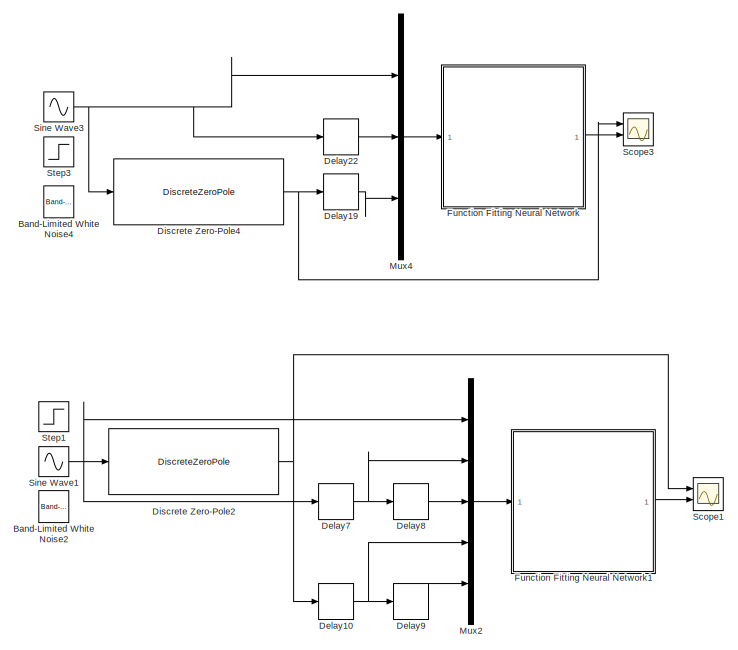
[diagram: root canvas - part 1/2, left side, full height]
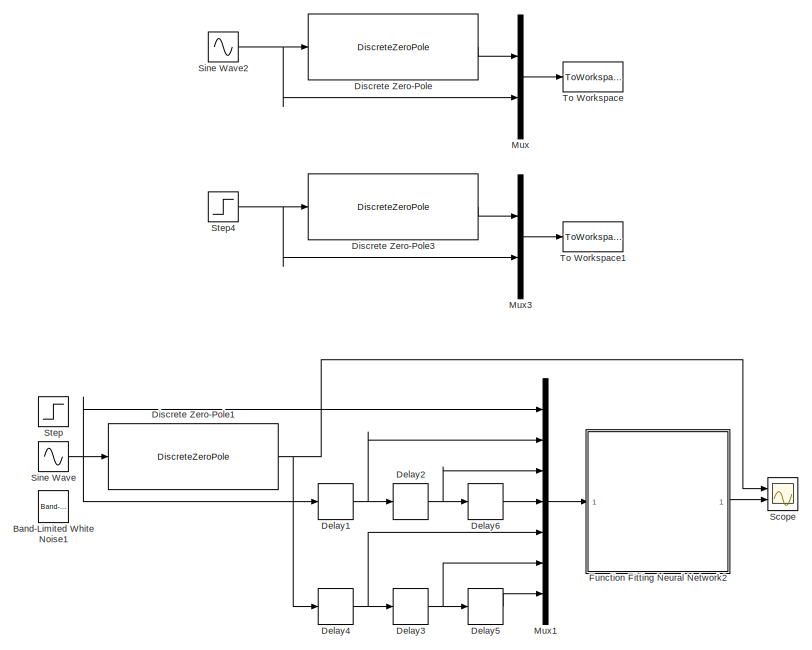
[diagram: root canvas - part 2/2, right side, full height]
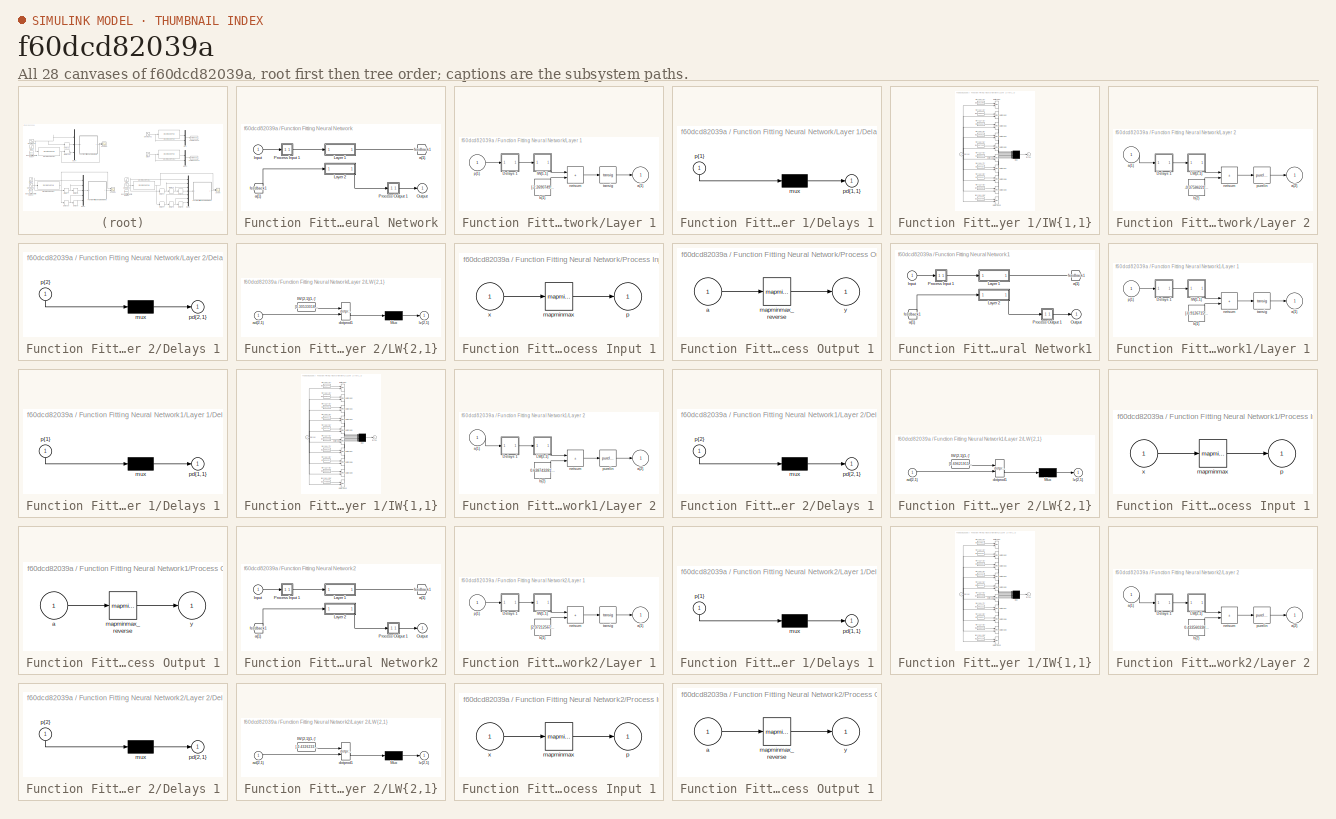
[diagram: thumbnail index - all 28 canvases of the model, root first then tree order]
MODEL slx_f60dcd82039a
KIND model
CONFIG AbsTol = auto
CONFIG EnableMultiTasking = on
CONFIG FixedStep = 0.05
CONFIG MaxStep = auto
CONFIG MinStep = auto
CONFIG RelTol = 1e-3
CONFIG SampleTimeConstraint = Unconstrained
CONFIG SolverName = FixedStepDiscrete
CONFIG StartTime = 0.0
CONFIG StopTime = 10
BLOCK [Reference] Band-Limited White Noise1  REF=simulink/Sources/Band-Limited
White Noise
  Ports = [0, 1]
  SourceBlock = simulink/Sources/Band-Limited\nWhite Noise
  SourceProductBaseCode = SL
  SourceType = Band-Limited White Noise.
BLOCK [Reference] Band-Limited White Noise2  REF=simulink/Sources/Band-Limited
White Noise
  Ports = [0, 1]
  SourceBlock = simulink/Sources/Band-Limited\nWhite Noise
  SourceProductBaseCode = SL
  SourceType = Band-Limited White Noise.
BLOCK [Reference] Band-Limited White Noise4  REF=simulink/Sources/Band-Limited
White Noise
  Ports = [0, 1]
  SourceBlock = simulink/Sources/Band-Limited\nWhite Noise
  SourceProductBaseCode = SL
  SourceType = Band-Limited White Noise.
BLOCK [Delay] Delay1
  DelayLength = 1
  InitialCondition = 0
  InputPortMap = u0
  Ports = [1, 1]
BLOCK [Delay] Delay10
  DelayLength = 1
  InitialCondition = 0
  InputPortMap = u0
  Ports = [1, 1]
BLOCK [Delay] Delay19
  DelayLength = 1
  InitialCondition = 0
  InputPortMap = u0
  Ports = [1, 1]
BLOCK [Delay] Delay2
  DelayLength = 1
  InitialCondition = 0
  InputPortMap = u0
  Ports = [1, 1]
BLOCK [Delay] Delay22
  DelayLength = 1
  InitialCondition = 0
  InputPortMap = u0
  Ports = [1, 1]
BLOCK [Delay] Delay3
  DelayLength = 1
  InitialCondition = 0
  InputPortMap = u0
  Ports = [1, 1]
BLOCK [Delay] Delay4
  DelayLength = 1
  InitialCondition = 0
  InputPortMap = u0
  Ports = [1, 1]
BLOCK [Delay] Delay5
  DelayLength = 1
  InitialCondition = 0
  InputPortMap = u0
  Ports = [1, 1]
BLOCK [Delay] Delay6
  DelayLength = 1
  InitialCondition = 0
  InputPortMap = u0
  Ports = [1, 1]
BLOCK [Delay] Delay7
  DelayLength = 1
  InitialCondition = 0
  InputPortMap = u0
  Ports = [1, 1]
BLOCK [Delay] Delay8
  DelayLength = 1
  InitialCondition = 0
  InputPortMap = u0
  Ports = [1, 1]
BLOCK [Delay] Delay9
  DelayLength = 1
  InitialCondition = 0
  InputPortMap = u0
  Ports = [1, 1]
BLOCK [DiscreteZeroPole] Discrete Zero-Pole
  Gain = 1
  Poles = [0.1 0.5 0.94]
  SampleTime = -1
  Zeros = [0.8]
BLOCK [DiscreteZeroPole] Discrete Zero-Pole1
  Gain = 1
  Poles = [0.1 0.5 0.94]
  SampleTime = -1
  Zeros = [0.8]
BLOCK [DiscreteZeroPole] Discrete Zero-Pole2
  Gain = 1
  Poles = [0.1 0.5 0.94]
  SampleTime = -1
  Zeros = [0.8]
BLOCK [DiscreteZeroPole] Discrete Zero-Pole3
  Gain = 1
  Poles = [0.1 0.5 0.94]
  SampleTime = -1
  Zeros = [0.8]
BLOCK [DiscreteZeroPole] Discrete Zero-Pole4
  Gain = 1
  Poles = [0.1 0.5 0.94]
  SampleTime = -1
  Zeros = [0.8]
BLOCK [SubSystem] Function Fitting Neural Network
  Ports = [1, 1]
  RequestExecContextInheritance = off
BLOCK [From] Function Fitting Neural Network/ a{1} 
  GotoTag = feedback1
BLOCK [Inport] Function Fitting Neural Network/Input
  PortDimensions = 3
BLOCK [SubSystem] Function Fitting Neural Network/Layer 1
  Ports = [1, 1]
  RequestExecContextInheritance = off
BLOCK [SubSystem] Function Fitting Neural Network/Layer 1/Delays 1
  Ports = [1, 1]
  RequestExecContextInheritance = off
BLOCK [Mux] Function Fitting Neural Network/Layer 1/Delays 1/mux
  Inputs = 1
  Ports = [1, 1]
BLOCK [Outport] Function Fitting Neural Network/Layer 1/Delays 1/pd{1,1}
BLOCK [Inport] Function Fitting Neural Network/Layer 1/Delays 1/p{1}
  NameLocation = left
  PortDimensions = 3
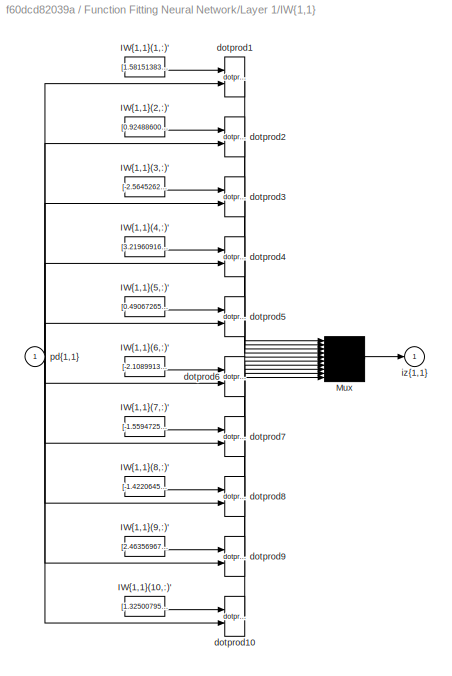
BLOCK [SubSystem] Function Fitting Neural Network/Layer 1/IW{1,1}
  Ports = [1, 1]
  RequestExecContextInheritance = off
BLOCK [Constant] Function Fitting Neural Network/Layer 1/IW{1,1}/IW{1,1}(1,:)'
  Value = [1.5815138363457652559418420423753559589385986328125;-1.6872163459666131846148573458776809275150299072265625;2.5832151850000268922258328530006110668182373046875]
BLOCK [Constant] Function Fitting Neural Network/Layer 1/IW{1,1}/IW{1,1}(10,:)'
  Value = [1.3250079569843506988036097027361392974853515625;1.3352627547983464406655684797442518174648284912109375;-1.6218067655676116078922177621279843151569366455078125]
BLOCK [Constant] Function Fitting Neural Network/Layer 1/IW{1,1}/IW{1,1}(2,:)'
  Value = [0.92488600284993960354285036373767070472240447998046875;1.621850220515159701761831456678919494152069091796875;-4.2786600382089741145819061785005033016204833984375]
BLOCK [Constant] Function Fitting Neural Network/Layer 1/IW{1,1}/IW{1,1}(3,:)'
  Value = [-2.564526298616160548959896914311684668064117431640625;0.93446161367931390717700423920177854597568511962890625;3.26348015681042369351416709832847118377685546875]
BLOCK [Constant] Function Fitting Neural Network/Layer 1/IW{1,1}/IW{1,1}(4,:)'
  Value = [3.219609160543231762829918807256035506725311279296875;0.38752466866904911046987081135739572346210479736328125;0.016739008500639050713854061314123100601136684417724609375]
BLOCK [Constant] Function Fitting Neural Network/Layer 1/IW{1,1}/IW{1,1}(5,:)'
  Value = [0.49067265178137897674304213069262914359569549560546875;1.8414534131022808338684626505710184574127197265625;1.352374664952284977204044480458833277225494384765625]
BLOCK [Constant] Function Fitting Neural Network/Layer 1/IW{1,1}/IW{1,1}(6,:)'
  Value = [-2.108991365255438399373133506742306053638458251953125;-2.38093635967131245223527002963237464427947998046875;1.358963679401484103692610005964525043964385986328125]
BLOCK [Constant] Function Fitting Neural Network/Layer 1/IW{1,1}/IW{1,1}(7,:)'
  Value = [-1.55947252588796470007537209312431514263153076171875;2.18558499331294964207472730777226388454437255859375;1.021130345471471745355529492371715605258941650390625]
BLOCK [Constant] Function Fitting Neural Network/Layer 1/IW{1,1}/IW{1,1}(8,:)'
  Value = [-1.4220645724545699639662643676274456083774566650390625;1.97793466762390579560815240256488323211669921875;1.86705021412507843336925361654721200466156005859375]
BLOCK [Constant] Function Fitting Neural Network/Layer 1/IW{1,1}/IW{1,1}(9,:)'
  Value = [2.463569677990985251625488672289066016674041748046875;-1.9470642043861994263664882964803837239742279052734375;1.819824469754362183948614983819425106048583984375]
BLOCK [Mux] Function Fitting Neural Network/Layer 1/IW{1,1}/Mux
  Inputs = 10
  Ports = [10, 1]
BLOCK [Reference] Function Fitting Neural Network/Layer 1/IW{1,1}/dotprod1  REF=neural/Weight Functions/dotprod
  Ports = [2, 1]
  SourceBlock = neural/Weight Functions/dotprod
  SourceProductBaseCode = NN
  SourceType = DOTPROD
BLOCK [Reference] Function Fitting Neural Network/Layer 1/IW{1,1}/dotprod10  REF=neural/Weight Functions/dotprod
  Ports = [2, 1]
  SourceBlock = neural/Weight Functions/dotprod
  SourceProductBaseCode = NN
  SourceType = DOTPROD
BLOCK [Reference] Function Fitting Neural Network/Layer 1/IW{1,1}/dotprod2  REF=neural/Weight Functions/dotprod
  Ports = [2, 1]
  SourceBlock = neural/Weight Functions/dotprod
  SourceProductBaseCode = NN
  SourceType = DOTPROD
BLOCK [Reference] Function Fitting Neural Network/Layer 1/IW{1,1}/dotprod3  REF=neural/Weight Functions/dotprod
  Ports = [2, 1]
  SourceBlock = neural/Weight Functions/dotprod
  SourceProductBaseCode = NN
  SourceType = DOTPROD
BLOCK [Reference] Function Fitting Neural Network/Layer 1/IW{1,1}/dotprod4  REF=neural/Weight Functions/dotprod
  Ports = [2, 1]
  SourceBlock = neural/Weight Functions/dotprod
  SourceProductBaseCode = NN
  SourceType = DOTPROD
BLOCK [Reference] Function Fitting Neural Network/Layer 1/IW{1,1}/dotprod5  REF=neural/Weight Functions/dotprod
  Ports = [2, 1]
  SourceBlock = neural/Weight Functions/dotprod
  SourceProductBaseCode = NN
  SourceType = DOTPROD
BLOCK [Reference] Function Fitting Neural Network/Layer 1/IW{1,1}/dotprod6  REF=neural/Weight Functions/dotprod
  Ports = [2, 1]
  SourceBlock = neural/Weight Functions/dotprod
  SourceProductBaseCode = NN
  SourceType = DOTPROD
BLOCK [Reference] Function Fitting Neural Network/Layer 1/IW{1,1}/dotprod7  REF=neural/Weight Functions/dotprod
  Ports = [2, 1]
  SourceBlock = neural/Weight Functions/dotprod
  SourceProductBaseCode = NN
  SourceType = DOTPROD
BLOCK [Reference] Function Fitting Neural Network/Layer 1/IW{1,1}/dotprod8  REF=neural/Weight Functions/dotprod
  Ports = [2, 1]
  SourceBlock = neural/Weight Functions/dotprod
  SourceProductBaseCode = NN
  SourceType = DOTPROD
BLOCK [Reference] Function Fitting Neural Network/Layer 1/IW{1,1}/dotprod9  REF=neural/Weight Functions/dotprod
  Ports = [2, 1]
  SourceBlock = neural/Weight Functions/dotprod
  SourceProductBaseCode = NN
  SourceType = DOTPROD
BLOCK [Outport] Function Fitting Neural Network/Layer 1/IW{1,1}/iz{1,1}
BLOCK [Inport] Function Fitting Neural Network/Layer 1/IW{1,1}/pd{1,1}
  PortDimensions = 3
BLOCK [Outport] Function Fitting Neural Network/Layer 1/a{1}
  InitialOutput = [0;0;0;0;0;0;0;0;0;0]
BLOCK [Constant] Function Fitting Neural Network/Layer 1/b{1}
  Value = [-2.269074953755759072038244994473643600940704345703125;-0.687183894571456566069400651031173765659332275390625;3.196728181762282350319992474396713078022003173828125;-0.050095383484116962069521150624495930969715118408203125;-1.0508039863170577365991675833356566727161407470703125;-1.0826391554405525585735858840052969753742218017578125;-0.2153026904287328735509987609475501812994480133056640625;1.9587...<+154ch>
BLOCK [Sum] Function Fitting Neural Network/Layer 1/netsum
  IconShape = rectangular
  InputSameDT = on
  Inputs = 2
  OutDataTypeStr = Inherit: Same as first input
  Ports = [2, 1]
  SaturateOnIntegerOverflow = on
BLOCK [Inport] Function Fitting Neural Network/Layer 1/p{1}
  PortDimensions = 3
BLOCK [Reference] Function Fitting Neural Network/Layer 1/tansig  REF=neural/Transfer Functions/tansig
  Ports = [1, 1]
  SourceBlock = neural/Transfer Functions/tansig
  SourceProductBaseCode = NN
  SourceType = TANSIG
BLOCK [SubSystem] Function Fitting Neural Network/Layer 2
  Ports = [1, 1]
  RequestExecContextInheritance = off
BLOCK [SubSystem] Function Fitting Neural Network/Layer 2/Delays 1
  Ports = [1, 1]
  RequestExecContextInheritance = off
BLOCK [Mux] Function Fitting Neural Network/Layer 2/Delays 1/mux
  Inputs = 1
  Ports = [1, 1]
BLOCK [Outport] Function Fitting Neural Network/Layer 2/Delays 1/pd{2,1}
BLOCK [Inport] Function Fitting Neural Network/Layer 2/Delays 1/p{2}
  NameLocation = left
  PortDimensions = 10
BLOCK [SubSystem] Function Fitting Neural Network/Layer 2/LW{2,1}
  Ports = [1, 1]
  RequestExecContextInheritance = off
BLOCK [Constant] Function Fitting Neural Network/Layer 2/LW{2,1}/IW{2,1}(1,:)'
  Value = [0.305330180192903422042860483998083509504795074462890625;-0.09090246399681344013909978230003616772592067718505859375;0.84495104086413963528912063338793814182281494140625;0.050595648200195686428060071193613111972808837890625;-0.05320384689142505785230952142228488810360431671142578125;0.0596726179009054724655669588173623196780681610107421875;0.57338054085596390496704088945989497005939483642578125;-...<+159ch>
BLOCK [Mux] Function Fitting Neural Network/Layer 2/LW{2,1}/Mux
  Inputs = 1
  Ports = [1, 1]
BLOCK [Inport] Function Fitting Neural Network/Layer 2/LW{2,1}/ad{2,1}
  PortDimensions = 10
BLOCK [Reference] Function Fitting Neural Network/Layer 2/LW{2,1}/dotprod1  REF=neural/Weight Functions/dotprod
  Ports = [2, 1]
  SourceBlock = neural/Weight Functions/dotprod
  SourceProductBaseCode = NN
  SourceType = DOTPROD
BLOCK [Outport] Function Fitting Neural Network/Layer 2/LW{2,1}/lz{2,1}
BLOCK [Inport] Function Fitting Neural Network/Layer 2/a{1} 
  PortDimensions = 10
BLOCK [Outport] Function Fitting Neural Network/Layer 2/a{2}
  InitialOutput = 0
BLOCK [Constant] Function Fitting Neural Network/Layer 2/b{2}
  Value = -0.375862219961594801187487746574333868920803070068359375
BLOCK [Sum] Function Fitting Neural Network/Layer 2/netsum
  IconShape = rectangular
  InputSameDT = on
  Inputs = 2
  OutDataTypeStr = Inherit: Same as first input
  Ports = [2, 1]
  SaturateOnIntegerOverflow = on
BLOCK [Reference] Function Fitting Neural Network/Layer 2/purelin  REF=neural/Transfer Functions/purelin
  Ports = [1, 1]
  SourceBlock = neural/Transfer Functions/purelin
  SourceProductBaseCode = NN
  SourceType = PURELIN
BLOCK [Outport] Function Fitting Neural Network/Output
  InitialOutput = 0
BLOCK [SubSystem] Function Fitting Neural Network/Process Input 1
  Ports = [1, 1]
  RequestExecContextInheritance = off
BLOCK [Reference] Function Fitting Neural Network/Process Input 1/mapminmax  REF=neural/Processing Functions/mapminmax
  Ports = [1, 1]
  SourceBlock = neural/Processing Functions/mapminmax
  SourceProductBaseCode = NN
  SourceType = MAPMINMAX Preprocess
BLOCK [Outport] Function Fitting Neural Network/Process Input 1/p
  PortDimensions = 3
BLOCK [Inport] Function Fitting Neural Network/Process Input 1/x
  PortDimensions = 3
BLOCK [SubSystem] Function Fitting Neural Network/Process Output 1
  Ports = [1, 1]
  RequestExecContextInheritance = off
BLOCK [Inport] Function Fitting Neural Network/Process Output 1/a
  PortDimensions = 1
BLOCK [Reference] Function Fitting Neural Network/Process Output 1/mapminmax_reverse  REF=neural/Processing Functions/mapminmax_reverse
  Ports = [1, 1]
  SourceBlock = neural/Processing Functions/mapminmax_reverse
  SourceProductBaseCode = NN
  SourceType = MAPMINMAX Reverse Process
BLOCK [Outport] Function Fitting Neural Network/Process Output 1/y
  PortDimensions = 1
BLOCK [Goto] Function Fitting Neural Network/a{1}
  GotoTag = feedback1
BLOCK [SubSystem] Function Fitting Neural Network1
  Ports = [1, 1]
  RequestExecContextInheritance = off
BLOCK [From] Function Fitting Neural Network1/ a{1} 
  GotoTag = feedback1
BLOCK [Inport] Function Fitting Neural Network1/Input
  PortDimensions = 5
BLOCK [SubSystem] Function Fitting Neural Network1/Layer 1
  Ports = [1, 1]
  RequestExecContextInheritance = off
BLOCK [SubSystem] Function Fitting Neural Network1/Layer 1/Delays 1
  Ports = [1, 1]
  RequestExecContextInheritance = off
BLOCK [Mux] Function Fitting Neural Network1/Layer 1/Delays 1/mux
  Inputs = 1
  Ports = [1, 1]
BLOCK [Outport] Function Fitting Neural Network1/Layer 1/Delays 1/pd{1,1}
BLOCK [Inport] Function Fitting Neural Network1/Layer 1/Delays 1/p{1}
  NameLocation = left
  PortDimensions = 5
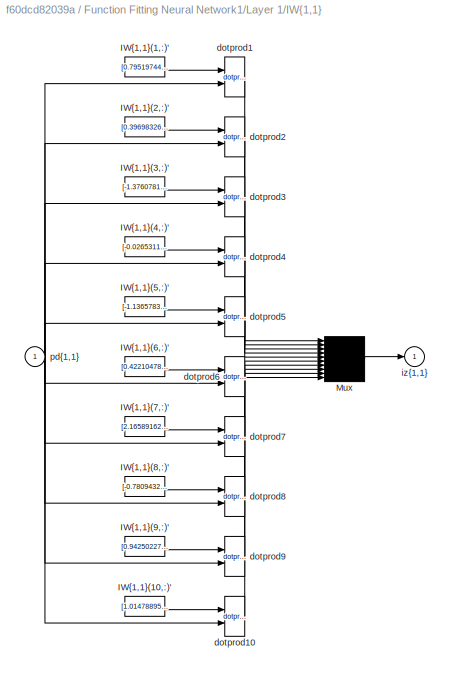
BLOCK [SubSystem] Function Fitting Neural Network1/Layer 1/IW{1,1}
  Ports = [1, 1]
  RequestExecContextInheritance = off
BLOCK [Constant] Function Fitting Neural Network1/Layer 1/IW{1,1}/IW{1,1}(1,:)'
  Value = [0.79519744141404091752889371491619385778903961181640625;-0.495044585017423599548891388621996156871318817138671875;-0.068265560637957134471065501202247105538845062255859375;1.6481426266691556747900904156267642974853515625;-0.929729769532996908054656159947626292705535888671875]
BLOCK [Constant] Function Fitting Neural Network1/Layer 1/IW{1,1}/IW{1,1}(10,:)'
  Value = [1.014788952492402085425737823243252933025360107421875;0.144310580059629878224569665690069086849689483642578125;1.1246420902101406102957525945384986698627471923828125;-0.5560808341643126428976984243490733206272125244140625;1.4048008254442569953113206793204881250858306884765625]
BLOCK [Constant] Function Fitting Neural Network1/Layer 1/IW{1,1}/IW{1,1}(2,:)'
  Value = [0.3969832645539164150960687038605101406574249267578125;-0.419481777747001960410244691956904716789722442626953125;-0.43560004422647435884385913595906458795070648193359375;-0.76190464860541406988403423383715562522411346435546875;-1.0153413258900287896580039159744046628475189208984375]
BLOCK [Constant] Function Fitting Neural Network1/Layer 1/IW{1,1}/IW{1,1}(3,:)'
  Value = [-1.3760781692914465512700417093583382666110992431640625;0.6854880867989823212127475926536135375499725341796875;0.334069088464875874056048132842988707125186920166015625;1.2154991573079632072307276757783256471157073974609375;0.55032038144463968354358485157717950642108917236328125]
BLOCK [Constant] Function Fitting Neural Network1/Layer 1/IW{1,1}/IW{1,1}(4,:)'
  Value = [-0.0265311263400039611115577287137057282961905002593994140625;0.652160249433335170721193208009935915470123291015625;0.204398870038734969956095710585941560566425323486328125;-1.19702166564687928485000156797468662261962890625;1.708645796212552081527746850042603909969329833984375]
BLOCK [Constant] Function Fitting Neural Network1/Layer 1/IW{1,1}/IW{1,1}(5,:)'
  Value = [-1.1365783737857440005569742424995638430118560791015625;0.94838974442742240977821666092495433986186981201171875;1.2378792875195261391496615033247508108615875244140625;0.92735793625327300748750758430105634033679962158203125;-0.76236747138336224960397657923749648034572601318359375]
BLOCK [Constant] Function Fitting Neural Network1/Layer 1/IW{1,1}/IW{1,1}(6,:)'
  Value = [0.422104784161868640257608831234392710030078887939453125;1.193336580810279823339214999577961862087249755859375;-0.8800657335940924586026312681497074663639068603515625;-1.1421060533852216423156278324313461780548095703125;-1.1829510992352163523122499100281856954097747802734375]
BLOCK [Constant] Function Fitting Neural Network1/Layer 1/IW{1,1}/IW{1,1}(7,:)'
  Value = [2.16589162759352138465374082443304359912872314453125;-1.1885755429527582460735857239342294633388519287109375;-0.72876081860753327834601122958702035248279571533203125;0.1070870211482936318336811609697178937494754791259765625;1.8987113265922570537469482587766833603382110595703125]
BLOCK [Constant] Function Fitting Neural Network1/Layer 1/IW{1,1}/IW{1,1}(8,:)'
  Value = [-0.7809432872593740082578506189747713506221771240234375;0.6689760164449587431789723268593661487102508544921875;-0.208154558002924428006252810519072227180004119873046875;1.3333362540757500713795025149011053144931793212890625;-0.62584826193456255527536313820746727287769317626953125]
BLOCK [Constant] Function Fitting Neural Network1/Layer 1/IW{1,1}/IW{1,1}(9,:)'
  Value = [0.94250227203809966436409695234033279120922088623046875;1.21649370440299176010512383072637021541595458984375;-0.92077347164220102460063799298950470983982086181640625;-0.866867136820131722885207636863924562931060791015625;1.0332840681792092585311593211372382938861846923828125]
BLOCK [Mux] Function Fitting Neural Network1/Layer 1/IW{1,1}/Mux
  Inputs = 10
  Ports = [10, 1]
BLOCK [Reference] Function Fitting Neural Network1/Layer 1/IW{1,1}/dotprod1  REF=neural/Weight Functions/dotprod
  Ports = [2, 1]
  SourceBlock = neural/Weight Functions/dotprod
  SourceProductBaseCode = NN
  SourceType = DOTPROD
BLOCK [Reference] Function Fitting Neural Network1/Layer 1/IW{1,1}/dotprod10  REF=neural/Weight Functions/dotprod
  Ports = [2, 1]
  SourceBlock = neural/Weight Functions/dotprod
  SourceProductBaseCode = NN
  SourceType = DOTPROD
BLOCK [Reference] Function Fitting Neural Network1/Layer 1/IW{1,1}/dotprod2  REF=neural/Weight Functions/dotprod
  Ports = [2, 1]
  SourceBlock = neural/Weight Functions/dotprod
  SourceProductBaseCode = NN
  SourceType = DOTPROD
BLOCK [Reference] Function Fitting Neural Network1/Layer 1/IW{1,1}/dotprod3  REF=neural/Weight Functions/dotprod
  Ports = [2, 1]
  SourceBlock = neural/Weight Functions/dotprod
  SourceProductBaseCode = NN
  SourceType = DOTPROD
BLOCK [Reference] Function Fitting Neural Network1/Layer 1/IW{1,1}/dotprod4  REF=neural/Weight Functions/dotprod
  Ports = [2, 1]
  SourceBlock = neural/Weight Functions/dotprod
  SourceProductBaseCode = NN
  SourceType = DOTPROD
BLOCK [Reference] Function Fitting Neural Network1/Layer 1/IW{1,1}/dotprod5  REF=neural/Weight Functions/dotprod
  Ports = [2, 1]
  SourceBlock = neural/Weight Functions/dotprod
  SourceProductBaseCode = NN
  SourceType = DOTPROD
BLOCK [Reference] Function Fitting Neural Network1/Layer 1/IW{1,1}/dotprod6  REF=neural/Weight Functions/dotprod
  Ports = [2, 1]
  SourceBlock = neural/Weight Functions/dotprod
  SourceProductBaseCode = NN
  SourceType = DOTPROD
BLOCK [Reference] Function Fitting Neural Network1/Layer 1/IW{1,1}/dotprod7  REF=neural/Weight Functions/dotprod
  Ports = [2, 1]
  SourceBlock = neural/Weight Functions/dotprod
  SourceProductBaseCode = NN
  SourceType = DOTPROD
BLOCK [Reference] Function Fitting Neural Network1/Layer 1/IW{1,1}/dotprod8  REF=neural/Weight Functions/dotprod
  Ports = [2, 1]
  SourceBlock = neural/Weight Functions/dotprod
  SourceProductBaseCode = NN
  SourceType = DOTPROD
BLOCK [Reference] Function Fitting Neural Network1/Layer 1/IW{1,1}/dotprod9  REF=neural/Weight Functions/dotprod
  Ports = [2, 1]
  SourceBlock = neural/Weight Functions/dotprod
  SourceProductBaseCode = NN
  SourceType = DOTPROD
BLOCK [Outport] Function Fitting Neural Network1/Layer 1/IW{1,1}/iz{1,1}
BLOCK [Inport] Function Fitting Neural Network1/Layer 1/IW{1,1}/pd{1,1}
  PortDimensions = 5
BLOCK [Outport] Function Fitting Neural Network1/Layer 1/a{1}
  InitialOutput = [0;0;0;0;0;0;0;0;0;0]
BLOCK [Constant] Function Fitting Neural Network1/Layer 1/b{1}
  Value = [-0.91267159349631776787958870045258663594722747802734375;-1.908389729506953624849074913072399795055389404296875;0.6790748743643171270178982013021595776081085205078125;0.95340796712886255459551421154174022376537322998046875;0.3667008088826964051776258202153258025646209716796875;0.3821962350027467980595474728033877909183502197265625;1.9081864597261677385375833182479254901409149169921875;-0.80023111...<+148ch>
BLOCK [Sum] Function Fitting Neural Network1/Layer 1/netsum
  IconShape = rectangular
  InputSameDT = on
  Inputs = 2
  OutDataTypeStr = Inherit: Same as first input
  Ports = [2, 1]
  SaturateOnIntegerOverflow = on
BLOCK [Inport] Function Fitting Neural Network1/Layer 1/p{1}
  PortDimensions = 5
BLOCK [Reference] Function Fitting Neural Network1/Layer 1/tansig  REF=neural/Transfer Functions/tansig
  Ports = [1, 1]
  SourceBlock = neural/Transfer Functions/tansig
  SourceProductBaseCode = NN
  SourceType = TANSIG
BLOCK [SubSystem] Function Fitting Neural Network1/Layer 2
  Ports = [1, 1]
  RequestExecContextInheritance = off
BLOCK [SubSystem] Function Fitting Neural Network1/Layer 2/Delays 1
  Ports = [1, 1]
  RequestExecContextInheritance = off
BLOCK [Mux] Function Fitting Neural Network1/Layer 2/Delays 1/mux
  Inputs = 1
  Ports = [1, 1]
BLOCK [Outport] Function Fitting Neural Network1/Layer 2/Delays 1/pd{2,1}
BLOCK [Inport] Function Fitting Neural Network1/Layer 2/Delays 1/p{2}
  NameLocation = left
  PortDimensions = 10
BLOCK [SubSystem] Function Fitting Neural Network1/Layer 2/LW{2,1}
  Ports = [1, 1]
  RequestExecContextInheritance = off
BLOCK [Constant] Function Fitting Neural Network1/Layer 2/LW{2,1}/IW{2,1}(1,:)'
  Value = [0.696219151155555326937474092119373381137847900390625;1.598543506527903890201969261397607624530792236328125;0.201026690382105910348542465726495720446109771728515625;0.09778981122230979983189769200180307962000370025634765625;0.2121918400244771352181061274677631445229053497314453125;-0.03549401957504909332907772068210761062800884246826171875;1.7912914768635903595139780009048990905284881591796875;0....<+174ch>
BLOCK [Mux] Function Fitting Neural Network1/Layer 2/LW{2,1}/Mux
  Inputs = 1
  Ports = [1, 1]
BLOCK [Inport] Function Fitting Neural Network1/Layer 2/LW{2,1}/ad{2,1}
  PortDimensions = 10
BLOCK [Reference] Function Fitting Neural Network1/Layer 2/LW{2,1}/dotprod1  REF=neural/Weight Functions/dotprod
  Ports = [2, 1]
  SourceBlock = neural/Weight Functions/dotprod
  SourceProductBaseCode = NN
  SourceType = DOTPROD
BLOCK [Outport] Function Fitting Neural Network1/Layer 2/LW{2,1}/lz{2,1}
BLOCK [Inport] Function Fitting Neural Network1/Layer 2/a{1} 
  PortDimensions = 10
BLOCK [Outport] Function Fitting Neural Network1/Layer 2/a{2}
  InitialOutput = 0
BLOCK [Constant] Function Fitting Neural Network1/Layer 2/b{2}
  Value = 0.6387432819834544250880981053342111408710479736328125
BLOCK [Sum] Function Fitting Neural Network1/Layer 2/netsum
  IconShape = rectangular
  InputSameDT = on
  Inputs = 2
  OutDataTypeStr = Inherit: Same as first input
  Ports = [2, 1]
  SaturateOnIntegerOverflow = on
BLOCK [Reference] Function Fitting Neural Network1/Layer 2/purelin  REF=neural/Transfer Functions/purelin
  Ports = [1, 1]
  SourceBlock = neural/Transfer Functions/purelin
  SourceProductBaseCode = NN
  SourceType = PURELIN
BLOCK [Outport] Function Fitting Neural Network1/Output
  InitialOutput = 0
BLOCK [SubSystem] Function Fitting Neural Network1/Process Input 1
  Ports = [1, 1]
  RequestExecContextInheritance = off
BLOCK [Reference] Function Fitting Neural Network1/Process Input 1/mapminmax  REF=neural/Processing Functions/mapminmax
  Ports = [1, 1]
  SourceBlock = neural/Processing Functions/mapminmax
  SourceProductBaseCode = NN
  SourceType = MAPMINMAX Preprocess
BLOCK [Outport] Function Fitting Neural Network1/Process Input 1/p
  PortDimensions = 5
BLOCK [Inport] Function Fitting Neural Network1/Process Input 1/x
  PortDimensions = 5
BLOCK [SubSystem] Function Fitting Neural Network1/Process Output 1
  Ports = [1, 1]
  RequestExecContextInheritance = off
BLOCK [Inport] Function Fitting Neural Network1/Process Output 1/a
  PortDimensions = 1
BLOCK [Reference] Function Fitting Neural Network1/Process Output 1/mapminmax_reverse  REF=neural/Processing Functions/mapminmax_reverse
  Ports = [1, 1]
  SourceBlock = neural/Processing Functions/mapminmax_reverse
  SourceProductBaseCode = NN
  SourceType = MAPMINMAX Reverse Process
BLOCK [Outport] Function Fitting Neural Network1/Process Output 1/y
  PortDimensions = 1
BLOCK [Goto] Function Fitting Neural Network1/a{1}
  GotoTag = feedback1
BLOCK [SubSystem] Function Fitting Neural Network2
  Ports = [1, 1]
  RequestExecContextInheritance = off
BLOCK [From] Function Fitting Neural Network2/ a{1} 
  GotoTag = feedback1
BLOCK [Inport] Function Fitting Neural Network2/Input
  PortDimensions = 7
BLOCK [SubSystem] Function Fitting Neural Network2/Layer 1
  Ports = [1, 1]
  RequestExecContextInheritance = off
BLOCK [SubSystem] Function Fitting Neural Network2/Layer 1/Delays 1
  Ports = [1, 1]
  RequestExecContextInheritance = off
BLOCK [Mux] Function Fitting Neural Network2/Layer 1/Delays 1/mux
  Inputs = 1
  Ports = [1, 1]
BLOCK [Outport] Function Fitting Neural Network2/Layer 1/Delays 1/pd{1,1}
BLOCK [Inport] Function Fitting Neural Network2/Layer 1/Delays 1/p{1}
  NameLocation = left
  PortDimensions = 7
BLOCK [SubSystem] Function Fitting Neural Network2/Layer 1/IW{1,1}
  Ports = [1, 1]
  RequestExecContextInheritance = off
BLOCK [Constant] Function Fitting Neural Network2/Layer 1/IW{1,1}/IW{1,1}(1,:)'
  Value = [-0.4627851800039619600823925793520174920558929443359375;0.31864663165245732390218336149700917303562164306640625;-0.86980292878130283096282937549403868615627288818359375;-0.56754905142857869915218316236860118806362152099609375;0.79749361327516943287463391243363730609416961669921875;-0.57772054903350233967529447909328155219554901123046875;0.48626135898779043742479188949801027774810791015625]
BLOCK [Constant] Function Fitting Neural Network2/Layer 1/IW{1,1}/IW{1,1}(10,:)'
  Value = [0.228471362973298008913758394555770792067050933837890625;0.4783885180558271610351539493422023952007293701171875;-0.5473720010823954762457788092433474957942962646484375;-0.00813466389353949791141129566085510305128991603851318359375;-1.3210948024613962115125787022407166659832000732421875;-0.5580012277368007200806232503964565694332122802734375;0.60572637479135627014414922086871229112148284912109375]
BLOCK [Constant] Function Fitting Neural Network2/Layer 1/IW{1,1}/IW{1,1}(2,:)'
  Value = [-0.4625318224315824178205502903438173234462738037109375;-0.1457712852363534372646114434246555902063846588134765625;0.414131883502234565685995448802714236080646514892578125;-1.106357150432635716441609474713914096355438232421875;1.3315639214014332036839505235548131167888641357421875;0.354800727920321190556052215470117516815662384033203125;-0.2319105122203649338441522331777377985417842864990234375]
BLOCK [Constant] Function Fitting Neural Network2/Layer 1/IW{1,1}/IW{1,1}(3,:)'
  Value = [-0.468059069211268219401489432129892520606517791748046875;-0.006958115151487987044831573513192779500968754291534423828125;0.419131553358960295962987174789304845035076141357421875;0.77626425744916482951651914845569990575313568115234375;-0.86205281717379234063258763853809796273708343505859375;-0.79999343615458606837620436635916121304035186767578125;0.193373218733161128524145055962435435503721237182...<+8ch>
BLOCK [Constant] Function Fitting Neural Network2/Layer 1/IW{1,1}/IW{1,1}(4,:)'
  Value = [-0.5931415256141236991282994495122693479061126708984375;-0.94849679176064582986072082348982803523540496826171875;-0.2867999589338736665666829139809124171733856201171875;1.00214044693821602294292461010627448558807373046875;0.075954673954885809639137050908175297081470489501953125;0.1618510147081100303267930939910002052783966064453125;-0.05931979852477210768402215990136028267443180084228515625]
BLOCK [Constant] Function Fitting Neural Network2/Layer 1/IW{1,1}/IW{1,1}(5,:)'
  Value = [-0.88813401153336035687146932104951702058315277099609375;-0.1862644660913776173405409508632146753370761871337890625;0.1579569490108594653765550219759461469948291778564453125;-0.271927465815499147527845025251735933125019073486328125;0.286920484298158751101937014027498662471771240234375;-0.2047750229927589871170567903391201980412006378173828125;0.8697677876662417428832441146369092166423797607421875...<+1ch>
BLOCK [Constant] Function Fitting Neural Network2/Layer 1/IW{1,1}/IW{1,1}(6,:)'
  Value = [0.495831892908922211571365323834470473229885101318359375;-0.0972062149918515583379985400824807584285736083984375;-0.583733320445477321669613957055844366550445556640625;-0.390553750579486658178751667946926318109035491943359375;-0.7655731982715445749221316873445175588130950927734375;0.85098344233827194482699951549875549972057342529296875;-0.1769814237965847414368880663460004143416881561279296875]
BLOCK [Constant] Function Fitting Neural Network2/Layer 1/IW{1,1}/IW{1,1}(7,:)'
  Value = [0.72651212410418419818114443842205218970775604248046875;-0.270370353618904213366391786621534265577793121337890625;0.12475294366115878552658813305242802016437053680419921875;-0.457965862711977089727355405557318590581417083740234375;1.0860242235679600231179620095645077526569366455078125;0.3800489106651230297728716323035769164562225341796875;1.044393210281803430206082339282147586345672607421875]
BLOCK [Constant] Function Fitting Neural Network2/Layer 1/IW{1,1}/IW{1,1}(8,:)'
  Value = [-0.5238856858881775213632181475986726582050323486328125;0.1505299344816569961924557219390408135950565338134765625;0.65056060495935075227436072964337654411792755126953125;0.3992423872287009789516787350294180214405059814453125;-0.127696801825647521244633253445499576628208160400390625;-0.279591430657607775689399431939818896353244781494140625;-0.9795744006765494393818016760633327066898345947265625]
BLOCK [Constant] Function Fitting Neural Network2/Layer 1/IW{1,1}/IW{1,1}(9,:)'
  Value = [0.57368341339852124693976520575233735144138336181640625;-0.24752688140770995328665549095603637397289276123046875;-0.46917481287382545307451664484688080847263336181640625;0.51958661490088220435978882960625924170017242431640625;1.2469117524915269701324405104969628155231475830078125;-0.353277330150339963221739481014083139598369598388671875;-0.56780166029642653580111755218240432441234588623046875]
BLOCK [Mux] Function Fitting Neural Network2/Layer 1/IW{1,1}/Mux
  Inputs = 10
  Ports = [10, 1]
BLOCK [Reference] Function Fitting Neural Network2/Layer 1/IW{1,1}/dotprod1  REF=neural/Weight Functions/dotprod
  Ports = [2, 1]
  SourceBlock = neural/Weight Functions/dotprod
  SourceProductBaseCode = NN
  SourceType = DOTPROD
BLOCK [Reference] Function Fitting Neural Network2/Layer 1/IW{1,1}/dotprod10  REF=neural/Weight Functions/dotprod
  Ports = [2, 1]
  SourceBlock = neural/Weight Functions/dotprod
  SourceProductBaseCode = NN
  SourceType = DOTPROD
BLOCK [Reference] Function Fitting Neural Network2/Layer 1/IW{1,1}/dotprod2  REF=neural/Weight Functions/dotprod
  Ports = [2, 1]
  SourceBlock = neural/Weight Functions/dotprod
  SourceProductBaseCode = NN
  SourceType = DOTPROD
BLOCK [Reference] Function Fitting Neural Network2/Layer 1/IW{1,1}/dotprod3  REF=neural/Weight Functions/dotprod
  Ports = [2, 1]
  SourceBlock = neural/Weight Functions/dotprod
  SourceProductBaseCode = NN
  SourceType = DOTPROD
BLOCK [Reference] Function Fitting Neural Network2/Layer 1/IW{1,1}/dotprod4  REF=neural/Weight Functions/dotprod
  Ports = [2, 1]
  SourceBlock = neural/Weight Functions/dotprod
  SourceProductBaseCode = NN
  SourceType = DOTPROD
BLOCK [Reference] Function Fitting Neural Network2/Layer 1/IW{1,1}/dotprod5  REF=neural/Weight Functions/dotprod
  Ports = [2, 1]
  SourceBlock = neural/Weight Functions/dotprod
  SourceProductBaseCode = NN
  SourceType = DOTPROD
BLOCK [Reference] Function Fitting Neural Network2/Layer 1/IW{1,1}/dotprod6  REF=neural/Weight Functions/dotprod
  Ports = [2, 1]
  SourceBlock = neural/Weight Functions/dotprod
  SourceProductBaseCode = NN
  SourceType = DOTPROD
BLOCK [Reference] Function Fitting Neural Network2/Layer 1/IW{1,1}/dotprod7  REF=neural/Weight Functions/dotprod
  Ports = [2, 1]
  SourceBlock = neural/Weight Functions/dotprod
  SourceProductBaseCode = NN
  SourceType = DOTPROD
BLOCK [Reference] Function Fitting Neural Network2/Layer 1/IW{1,1}/dotprod8  REF=neural/Weight Functions/dotprod
  Ports = [2, 1]
  SourceBlock = neural/Weight Functions/dotprod
  SourceProductBaseCode = NN
  SourceType = DOTPROD
BLOCK [Reference] Function Fitting Neural Network2/Layer 1/IW{1,1}/dotprod9  REF=neural/Weight Functions/dotprod
  Ports = [2, 1]
  SourceBlock = neural/Weight Functions/dotprod
  SourceProductBaseCode = NN
  SourceType = DOTPROD
BLOCK [Outport] Function Fitting Neural Network2/Layer 1/IW{1,1}/iz{1,1}
BLOCK [Inport] Function Fitting Neural Network2/Layer 1/IW{1,1}/pd{1,1}
  PortDimensions = 7
BLOCK [Outport] Function Fitting Neural Network2/Layer 1/a{1}
  InitialOutput = [0;0;0;0;0;0;0;0;0;0]
BLOCK [Constant] Function Fitting Neural Network2/Layer 1/b{1}
  Value = [2.372125675946234135693657663068734109401702880859375;1.0143210824384869539471765165217220783233642578125;0.72309119096982765739767273771576583385467529296875;0.426759968253412613758968063848442398011684417724609375;-0.80074317955856211259657584378146566450595855712890625;0.245464575616852032080572598715662024915218353271484375;0.5908359444739843535643331051687709987163543701171875;-0.45742091409...<+150ch>
BLOCK [Sum] Function Fitting Neural Network2/Layer 1/netsum
  IconShape = rectangular
  InputSameDT = on
  Inputs = 2
  OutDataTypeStr = Inherit: Same as first input
  Ports = [2, 1]
  SaturateOnIntegerOverflow = on
BLOCK [Inport] Function Fitting Neural Network2/Layer 1/p{1}
  PortDimensions = 7
BLOCK [Reference] Function Fitting Neural Network2/Layer 1/tansig  REF=neural/Transfer Functions/tansig
  Ports = [1, 1]
  SourceBlock = neural/Transfer Functions/tansig
  SourceProductBaseCode = NN
  SourceType = TANSIG
BLOCK [SubSystem] Function Fitting Neural Network2/Layer 2
  Ports = [1, 1]
  RequestExecContextInheritance = off
BLOCK [SubSystem] Function Fitting Neural Network2/Layer 2/Delays 1
  Ports = [1, 1]
  RequestExecContextInheritance = off
BLOCK [Mux] Function Fitting Neural Network2/Layer 2/Delays 1/mux
  Inputs = 1
  Ports = [1, 1]
BLOCK [Outport] Function Fitting Neural Network2/Layer 2/Delays 1/pd{2,1}
BLOCK [Inport] Function Fitting Neural Network2/Layer 2/Delays 1/p{2}
  NameLocation = left
  PortDimensions = 10
BLOCK [SubSystem] Function Fitting Neural Network2/Layer 2/LW{2,1}
  Ports = [1, 1]
  RequestExecContextInheritance = off
BLOCK [Constant] Function Fitting Neural Network2/Layer 2/LW{2,1}/IW{2,1}(1,:)'
  Value = [-0.432623384681617928482211254959111101925373077392578125;0.343373699137858034990955502507858909666538238525390625;-0.289323805044462811775218824550393037497997283935546875;-0.1342349667734862028733999750329530797898769378662109375;0.1849597426246283315975915684248320758342742919921875;-0.6237248831875878973818316808319650590419769287109375;-0.00047179416582997799403664807016411941731348633766174...<+181ch>
BLOCK [Mux] Function Fitting Neural Network2/Layer 2/LW{2,1}/Mux
  Inputs = 1
  Ports = [1, 1]
BLOCK [Inport] Function Fitting Neural Network2/Layer 2/LW{2,1}/ad{2,1}
  PortDimensions = 10
BLOCK [Reference] Function Fitting Neural Network2/Layer 2/LW{2,1}/dotprod1  REF=neural/Weight Functions/dotprod
  Ports = [2, 1]
  SourceBlock = neural/Weight Functions/dotprod
  SourceProductBaseCode = NN
  SourceType = DOTPROD
BLOCK [Outport] Function Fitting Neural Network2/Layer 2/LW{2,1}/lz{2,1}
BLOCK [Inport] Function Fitting Neural Network2/Layer 2/a{1} 
  PortDimensions = 10
BLOCK [Outport] Function Fitting Neural Network2/Layer 2/a{2}
  InitialOutput = 0
BLOCK [Constant] Function Fitting Neural Network2/Layer 2/b{2}
  Value = 0.433560338957619861854908549503306858241558074951171875
BLOCK [Sum] Function Fitting Neural Network2/Layer 2/netsum
  IconShape = rectangular
  InputSameDT = on
  Inputs = 2
  OutDataTypeStr = Inherit: Same as first input
  Ports = [2, 1]
  SaturateOnIntegerOverflow = on
BLOCK [Reference] Function Fitting Neural Network2/Layer 2/purelin  REF=neural/Transfer Functions/purelin
  Ports = [1, 1]
  SourceBlock = neural/Transfer Functions/purelin
  SourceProductBaseCode = NN
  SourceType = PURELIN
BLOCK [Outport] Function Fitting Neural Network2/Output
  InitialOutput = 0
BLOCK [SubSystem] Function Fitting Neural Network2/Process Input 1
  Ports = [1, 1]
  RequestExecContextInheritance = off
BLOCK [Reference] Function Fitting Neural Network2/Process Input 1/mapminmax  REF=neural/Processing Functions/mapminmax
  Ports = [1, 1]
  SourceBlock = neural/Processing Functions/mapminmax
  SourceProductBaseCode = NN
  SourceType = MAPMINMAX Preprocess
BLOCK [Outport] Function Fitting Neural Network2/Process Input 1/p
  PortDimensions = 7
BLOCK [Inport] Function Fitting Neural Network2/Process Input 1/x
  PortDimensions = 7
BLOCK [SubSystem] Function Fitting Neural Network2/Process Output 1
  Ports = [1, 1]
  RequestExecContextInheritance = off
BLOCK [Inport] Function Fitting Neural Network2/Process Output 1/a
  PortDimensions = 1
BLOCK [Reference] Function Fitting Neural Network2/Process Output 1/mapminmax_reverse  REF=neural/Processing Functions/mapminmax_reverse
  Ports = [1, 1]
  SourceBlock = neural/Processing Functions/mapminmax_reverse
  SourceProductBaseCode = NN
  SourceType = MAPMINMAX Reverse Process
BLOCK [Outport] Function Fitting Neural Network2/Process Output 1/y
  PortDimensions = 1
BLOCK [Goto] Function Fitting Neural Network2/a{1}
  GotoTag = feedback1
BLOCK [Mux] Mux
  DisplayOption = bar
  Inputs = 2
  Ports = [2, 1]
BLOCK [Mux] Mux1
  DisplayOption = bar
  Inputs = 7
  Ports = [7, 1]
BLOCK [Mux] Mux2
  DisplayOption = bar
  Inputs = 5
  Ports = [5, 1]
BLOCK [Mux] Mux3
  DisplayOption = bar
  Inputs = 2
  Ports = [2, 1]
BLOCK [Mux] Mux4
  DisplayOption = bar
  Inputs = 3
  Ports = [3, 1]
BLOCK [Scope] Scope
  Floating = off
  NumInputPorts = 2
  Ports = [2]
  ScopeSpecificationString = Simulink.scopes.TimeScopeBlockCfg('CurrentConfiguration', extmgr.ConfigurationSet(extmgr.Configuration('Core','General UI',true),extmgr.Configuration('Core','Source UI',true),extmgr.Configuration('Sources','WiredSimulink',true),extmgr.Configuration('Visuals','Time Domain',true,'SerializedDisplays',{struct('MinYLimReal','-7.38806','MaxYLimReal','7.6071','YLabelReal','','MinYLimMag','0.00000','MaxYL...<+1509ch>
BLOCK [Scope] Scope1
  Floating = off
  NumInputPorts = 2
  Ports = [2]
  ScopeSpecificationString = Simulink.scopes.TimeScopeBlockCfg('CurrentConfiguration', extmgr.ConfigurationSet(extmgr.Configuration('Core','General UI',true),extmgr.Configuration('Core','Source UI',true),extmgr.Configuration('Sources','WiredSimulink',true,'DataLoggingVariableName','ScopeData1'),extmgr.Configuration('Visuals','Time Domain',true,'SerializedDisplays',{struct('MinYLimReal','-7.43089','MaxYLimReal','7.61502','YLab...<+1602ch>
BLOCK [Scope] Scope3
  Floating = off
  NumInputPorts = 2
  Ports = [2]
  ScopeSpecificationString = Simulink.scopes.TimeScopeBlockCfg('CurrentConfiguration', extmgr.ConfigurationSet(extmgr.Configuration('Core','General UI',true),extmgr.Configuration('Core','Source UI',true),extmgr.Configuration('Sources','WiredSimulink',true,'DataLoggingVariableName','ScopeData3'),extmgr.Configuration('Visuals','Time Domain',true,'SerializedDisplays',{struct('MinYLimReal','-0.7953','MaxYLimReal','6.56192','YLabe...<+1549ch>
BLOCK [Sin] Sine Wave
  Ports = [0, 1]
  SampleTime = 0
BLOCK [Sin] Sine Wave1
  Ports = [0, 1]
  SampleTime = 0
BLOCK [Sin] Sine Wave2
  Ports = [0, 1]
  SampleTime = 0
BLOCK [Sin] Sine Wave3
  Ports = [0, 1]
  SampleTime = 0
BLOCK [Step] Step
  SampleTime = 0
BLOCK [Step] Step1
  SampleTime = 0
BLOCK [Step] Step3
  SampleTime = 0
BLOCK [Step] Step4
  SampleTime = 0
BLOCK [ToWorkspace] To Workspace
  FixptAsFi = on
  MaxDataPoints = inf
  Ports = [1]
  SampleTime = -1
  SaveFormat = Timeseries
  VariableName = simout1
BLOCK [ToWorkspace] To Workspace1
  FixptAsFi = on
  MaxDataPoints = inf
  Ports = [1]
  SampleTime = -1
  SaveFormat = Timeseries
  VariableName = simout2
NET Delay10:1 -> Delay9:1, Mux2:4
LINE Delay19:1 -> Mux4:3
NET Delay1:1 -> Delay2:1, Mux1:2
LINE Delay22:1 -> Mux4:2
NET Delay2:1 -> Delay6:1, Mux1:3
NET Delay3:1 -> Delay5:1, Mux1:6
NET Delay4:1 -> Delay3:1, Mux1:5
LINE Delay5:1 -> Mux1:7
LINE Delay6:1 -> Mux1:4
NET Delay7:1 -> Delay8:1, Mux2:2
LINE Delay8:1 -> Mux2:3
LINE Delay9:1 -> Mux2:5
NET Discrete Zero-Pole1:1 -> Delay4:1, Scope:1
NET Discrete Zero-Pole2:1 -> Delay10:1, Scope1:1
LINE Discrete Zero-Pole3:1 -> Mux3:1
NET Discrete Zero-Pole4:1 -> Delay19:1, Scope3:1
LINE Discrete Zero-Pole:1 -> Mux:1
LINE Function Fitting Neural Network/ a{1} :1 -> Function Fitting Neural Network/Layer 2:1
LINE Function Fitting Neural Network/Input:1 -> Function Fitting Neural Network/Process Input 1:1
LINE Function Fitting Neural Network/Layer 1/Delays 1/mux:1 -> Function Fitting Neural Network/Layer 1/Delays 1/pd{1,1}:1
LINE Function Fitting Neural Network/Layer 1/Delays 1/p{1}:1 -> Function Fitting Neural Network/Layer 1/Delays 1/mux:1
LINE Function Fitting Neural Network/Layer 1/Delays 1:1 -> Function Fitting Neural Network/Layer 1/IW{1,1}:1
LINE Function Fitting Neural Network/Layer 1/IW{1,1}/IW{1,1}(1,:)':1 -> Function Fitting Neural Network/Layer 1/IW{1,1}/dotprod1:1
LINE Function Fitting Neural Network/Layer 1/IW{1,1}/IW{1,1}(10,:)':1 -> Function Fitting Neural Network/Layer 1/IW{1,1}/dotprod10:1
LINE Function Fitting Neural Network/Layer 1/IW{1,1}/IW{1,1}(2,:)':1 -> Function Fitting Neural Network/Layer 1/IW{1,1}/dotprod2:1
LINE Function Fitting Neural Network/Layer 1/IW{1,1}/IW{1,1}(3,:)':1 -> Function Fitting Neural Network/Layer 1/IW{1,1}/dotprod3:1
LINE Function Fitting Neural Network/Layer 1/IW{1,1}/IW{1,1}(4,:)':1 -> Function Fitting Neural Network/Layer 1/IW{1,1}/dotprod4:1
LINE Function Fitting Neural Network/Layer 1/IW{1,1}/IW{1,1}(5,:)':1 -> Function Fitting Neural Network/Layer 1/IW{1,1}/dotprod5:1
LINE Function Fitting Neural Network/Layer 1/IW{1,1}/IW{1,1}(6,:)':1 -> Function Fitting Neural Network/Layer 1/IW{1,1}/dotprod6:1
LINE Function Fitting Neural Network/Layer 1/IW{1,1}/IW{1,1}(7,:)':1 -> Function Fitting Neural Network/Layer 1/IW{1,1}/dotprod7:1
LINE Function Fitting Neural Network/Layer 1/IW{1,1}/IW{1,1}(8,:)':1 -> Function Fitting Neural Network/Layer 1/IW{1,1}/dotprod8:1
LINE Function Fitting Neural Network/Layer 1/IW{1,1}/IW{1,1}(9,:)':1 -> Function Fitting Neural Network/Layer 1/IW{1,1}/dotprod9:1
LINE Function Fitting Neural Network/Layer 1/IW{1,1}/Mux:1 -> Function Fitting Neural Network/Layer 1/IW{1,1}/iz{1,1}:1
LINE Function Fitting Neural Network/Layer 1/IW{1,1}/dotprod10:1 -> Function Fitting Neural Network/Layer 1/IW{1,1}/Mux:10
LINE Function Fitting Neural Network/Layer 1/IW{1,1}/dotprod1:1 -> Function Fitting Neural Network/Layer 1/IW{1,1}/Mux:1
LINE Function Fitting Neural Network/Layer 1/IW{1,1}/dotprod2:1 -> Function Fitting Neural Network/Layer 1/IW{1,1}/Mux:2
LINE Function Fitting Neural Network/Layer 1/IW{1,1}/dotprod3:1 -> Function Fitting Neural Network/Layer 1/IW{1,1}/Mux:3
LINE Function Fitting Neural Network/Layer 1/IW{1,1}/dotprod4:1 -> Function Fitting Neural Network/Layer 1/IW{1,1}/Mux:4
LINE Function Fitting Neural Network/Layer 1/IW{1,1}/dotprod5:1 -> Function Fitting Neural Network/Layer 1/IW{1,1}/Mux:5
LINE Function Fitting Neural Network/Layer 1/IW{1,1}/dotprod6:1 -> Function Fitting Neural Network/Layer 1/IW{1,1}/Mux:6
LINE Function Fitting Neural Network/Layer 1/IW{1,1}/dotprod7:1 -> Function Fitting Neural Network/Layer 1/IW{1,1}/Mux:7
LINE Function Fitting Neural Network/Layer 1/IW{1,1}/dotprod8:1 -> Function Fitting Neural Network/Layer 1/IW{1,1}/Mux:8
LINE Function Fitting Neural Network/Layer 1/IW{1,1}/dotprod9:1 -> Function Fitting Neural Network/Layer 1/IW{1,1}/Mux:9
NET Function Fitting Neural Network/Layer 1/IW{1,1}/pd{1,1}:1 -> Function Fitting Neural Network/Layer 1/IW{1,1}/dotprod10:2, Function Fitting Neural Network/Layer 1/IW{1,1}/dotprod1:2, Function Fitting Neural Network/Layer 1/IW{1,1}/dotprod2:2, Function Fitting Neural Network/Layer 1/IW{1,1}/dotprod3:2, Function Fitting Neural Network/Layer 1/IW{1,1}/dotprod4:2, Function Fitting Neural Network/Layer 1/IW{1,1}/dotprod5:2, Function Fitting Neural Network/Layer 1/IW{1,1}/dotprod6:2, Function Fitting Neural Network/Layer 1/IW{1,1}/dotprod7:2, Function Fitting Neural Network/Layer 1/IW{1,1}/dotprod8:2, Function Fitting Neural Network/Layer 1/IW{1,1}/dotprod9:2
LINE Function Fitting Neural Network/Layer 1/IW{1,1}:1 -> Function Fitting Neural Network/Layer 1/netsum:1
LINE Function Fitting Neural Network/Layer 1/b{1}:1 -> Function Fitting Neural Network/Layer 1/netsum:2
LINE Function Fitting Neural Network/Layer 1/netsum:1 -> Function Fitting Neural Network/Layer 1/tansig:1
LINE Function Fitting Neural Network/Layer 1/p{1}:1 -> Function Fitting Neural Network/Layer 1/Delays 1:1
LINE Function Fitting Neural Network/Layer 1/tansig:1 -> Function Fitting Neural Network/Layer 1/a{1}:1
LINE Function Fitting Neural Network/Layer 1:1 -> Function Fitting Neural Network/a{1}:1
LINE Function Fitting Neural Network/Layer 2/Delays 1/mux:1 -> Function Fitting Neural Network/Layer 2/Delays 1/pd{2,1}:1
LINE Function Fitting Neural Network/Layer 2/Delays 1/p{2}:1 -> Function Fitting Neural Network/Layer 2/Delays 1/mux:1
LINE Function Fitting Neural Network/Layer 2/Delays 1:1 -> Function Fitting Neural Network/Layer 2/LW{2,1}:1
LINE Function Fitting Neural Network/Layer 2/LW{2,1}/IW{2,1}(1,:)':1 -> Function Fitting Neural Network/Layer 2/LW{2,1}/dotprod1:1
LINE Function Fitting Neural Network/Layer 2/LW{2,1}/Mux:1 -> Function Fitting Neural Network/Layer 2/LW{2,1}/lz{2,1}:1
LINE Function Fitting Neural Network/Layer 2/LW{2,1}/ad{2,1}:1 -> Function Fitting Neural Network/Layer 2/LW{2,1}/dotprod1:2
LINE Function Fitting Neural Network/Layer 2/LW{2,1}/dotprod1:1 -> Function Fitting Neural Network/Layer 2/LW{2,1}/Mux:1
LINE Function Fitting Neural Network/Layer 2/LW{2,1}:1 -> Function Fitting Neural Network/Layer 2/netsum:1
LINE Function Fitting Neural Network/Layer 2/a{1} :1 -> Function Fitting Neural Network/Layer 2/Delays 1:1
LINE Function Fitting Neural Network/Layer 2/b{2}:1 -> Function Fitting Neural Network/Layer 2/netsum:2
LINE Function Fitting Neural Network/Layer 2/netsum:1 -> Function Fitting Neural Network/Layer 2/purelin:1
LINE Function Fitting Neural Network/Layer 2/purelin:1 -> Function Fitting Neural Network/Layer 2/a{2}:1
LINE Function Fitting Neural Network/Layer 2:1 -> Function Fitting Neural Network/Process Output 1:1
LINE Function Fitting Neural Network/Process Input 1/mapminmax:1 -> Function Fitting Neural Network/Process Input 1/p:1
LINE Function Fitting Neural Network/Process Input 1/x:1 -> Function Fitting Neural Network/Process Input 1/mapminmax:1
LINE Function Fitting Neural Network/Process Input 1:1 -> Function Fitting Neural Network/Layer 1:1
LINE Function Fitting Neural Network/Process Output 1/a:1 -> Function Fitting Neural Network/Process Output 1/mapminmax_reverse:1
LINE Function Fitting Neural Network/Process Output 1/mapminmax_reverse:1 -> Function Fitting Neural Network/Process Output 1/y:1
LINE Function Fitting Neural Network/Process Output 1:1 -> Function Fitting Neural Network/Output:1
LINE Function Fitting Neural Network1/ a{1} :1 -> Function Fitting Neural Network1/Layer 2:1
LINE Function Fitting Neural Network1/Input:1 -> Function Fitting Neural Network1/Process Input 1:1
LINE Function Fitting Neural Network1/Layer 1/Delays 1/mux:1 -> Function Fitting Neural Network1/Layer 1/Delays 1/pd{1,1}:1
LINE Function Fitting Neural Network1/Layer 1/Delays 1/p{1}:1 -> Function Fitting Neural Network1/Layer 1/Delays 1/mux:1
LINE Function Fitting Neural Network1/Layer 1/Delays 1:1 -> Function Fitting Neural Network1/Layer 1/IW{1,1}:1
LINE Function Fitting Neural Network1/Layer 1/IW{1,1}/IW{1,1}(1,:)':1 -> Function Fitting Neural Network1/Layer 1/IW{1,1}/dotprod1:1
LINE Function Fitting Neural Network1/Layer 1/IW{1,1}/IW{1,1}(10,:)':1 -> Function Fitting Neural Network1/Layer 1/IW{1,1}/dotprod10:1
LINE Function Fitting Neural Network1/Layer 1/IW{1,1}/IW{1,1}(2,:)':1 -> Function Fitting Neural Network1/Layer 1/IW{1,1}/dotprod2:1
LINE Function Fitting Neural Network1/Layer 1/IW{1,1}/IW{1,1}(3,:)':1 -> Function Fitting Neural Network1/Layer 1/IW{1,1}/dotprod3:1
LINE Function Fitting Neural Network1/Layer 1/IW{1,1}/IW{1,1}(4,:)':1 -> Function Fitting Neural Network1/Layer 1/IW{1,1}/dotprod4:1
LINE Function Fitting Neural Network1/Layer 1/IW{1,1}/IW{1,1}(5,:)':1 -> Function Fitting Neural Network1/Layer 1/IW{1,1}/dotprod5:1
LINE Function Fitting Neural Network1/Layer 1/IW{1,1}/IW{1,1}(6,:)':1 -> Function Fitting Neural Network1/Layer 1/IW{1,1}/dotprod6:1
LINE Function Fitting Neural Network1/Layer 1/IW{1,1}/IW{1,1}(7,:)':1 -> Function Fitting Neural Network1/Layer 1/IW{1,1}/dotprod7:1
LINE Function Fitting Neural Network1/Layer 1/IW{1,1}/IW{1,1}(8,:)':1 -> Function Fitting Neural Network1/Layer 1/IW{1,1}/dotprod8:1
LINE Function Fitting Neural Network1/Layer 1/IW{1,1}/IW{1,1}(9,:)':1 -> Function Fitting Neural Network1/Layer 1/IW{1,1}/dotprod9:1
LINE Function Fitting Neural Network1/Layer 1/IW{1,1}/Mux:1 -> Function Fitting Neural Network1/Layer 1/IW{1,1}/iz{1,1}:1
LINE Function Fitting Neural Network1/Layer 1/IW{1,1}/dotprod10:1 -> Function Fitting Neural Network1/Layer 1/IW{1,1}/Mux:10
LINE Function Fitting Neural Network1/Layer 1/IW{1,1}/dotprod1:1 -> Function Fitting Neural Network1/Layer 1/IW{1,1}/Mux:1
LINE Function Fitting Neural Network1/Layer 1/IW{1,1}/dotprod2:1 -> Function Fitting Neural Network1/Layer 1/IW{1,1}/Mux:2
LINE Function Fitting Neural Network1/Layer 1/IW{1,1}/dotprod3:1 -> Function Fitting Neural Network1/Layer 1/IW{1,1}/Mux:3
LINE Function Fitting Neural Network1/Layer 1/IW{1,1}/dotprod4:1 -> Function Fitting Neural Network1/Layer 1/IW{1,1}/Mux:4
LINE Function Fitting Neural Network1/Layer 1/IW{1,1}/dotprod5:1 -> Function Fitting Neural Network1/Layer 1/IW{1,1}/Mux:5
LINE Function Fitting Neural Network1/Layer 1/IW{1,1}/dotprod6:1 -> Function Fitting Neural Network1/Layer 1/IW{1,1}/Mux:6
LINE Function Fitting Neural Network1/Layer 1/IW{1,1}/dotprod7:1 -> Function Fitting Neural Network1/Layer 1/IW{1,1}/Mux:7
LINE Function Fitting Neural Network1/Layer 1/IW{1,1}/dotprod8:1 -> Function Fitting Neural Network1/Layer 1/IW{1,1}/Mux:8
LINE Function Fitting Neural Network1/Layer 1/IW{1,1}/dotprod9:1 -> Function Fitting Neural Network1/Layer 1/IW{1,1}/Mux:9
NET Function Fitting Neural Network1/Layer 1/IW{1,1}/pd{1,1}:1 -> Function Fitting Neural Network1/Layer 1/IW{1,1}/dotprod10:2, Function Fitting Neural Network1/Layer 1/IW{1,1}/dotprod1:2, Function Fitting Neural Network1/Layer 1/IW{1,1}/dotprod2:2, Function Fitting Neural Network1/Layer 1/IW{1,1}/dotprod3:2, Function Fitting Neural Network1/Layer 1/IW{1,1}/dotprod4:2, Function Fitting Neural Network1/Layer 1/IW{1,1}/dotprod5:2, Function Fitting Neural Network1/Layer 1/IW{1,1}/dotprod6:2, Function Fitting Neural Network1/Layer 1/IW{1,1}/dotprod7:2, Function Fitting Neural Network1/Layer 1/IW{1,1}/dotprod8:2, Function Fitting Neural Network1/Layer 1/IW{1,1}/dotprod9:2
LINE Function Fitting Neural Network1/Layer 1/IW{1,1}:1 -> Function Fitting Neural Network1/Layer 1/netsum:1
LINE Function Fitting Neural Network1/Layer 1/b{1}:1 -> Function Fitting Neural Network1/Layer 1/netsum:2
LINE Function Fitting Neural Network1/Layer 1/netsum:1 -> Function Fitting Neural Network1/Layer 1/tansig:1
LINE Function Fitting Neural Network1/Layer 1/p{1}:1 -> Function Fitting Neural Network1/Layer 1/Delays 1:1
LINE Function Fitting Neural Network1/Layer 1/tansig:1 -> Function Fitting Neural Network1/Layer 1/a{1}:1
LINE Function Fitting Neural Network1/Layer 1:1 -> Function Fitting Neural Network1/a{1}:1
LINE Function Fitting Neural Network1/Layer 2/Delays 1/mux:1 -> Function Fitting Neural Network1/Layer 2/Delays 1/pd{2,1}:1
LINE Function Fitting Neural Network1/Layer 2/Delays 1/p{2}:1 -> Function Fitting Neural Network1/Layer 2/Delays 1/mux:1
LINE Function Fitting Neural Network1/Layer 2/Delays 1:1 -> Function Fitting Neural Network1/Layer 2/LW{2,1}:1
LINE Function Fitting Neural Network1/Layer 2/LW{2,1}/IW{2,1}(1,:)':1 -> Function Fitting Neural Network1/Layer 2/LW{2,1}/dotprod1:1
LINE Function Fitting Neural Network1/Layer 2/LW{2,1}/Mux:1 -> Function Fitting Neural Network1/Layer 2/LW{2,1}/lz{2,1}:1
LINE Function Fitting Neural Network1/Layer 2/LW{2,1}/ad{2,1}:1 -> Function Fitting Neural Network1/Layer 2/LW{2,1}/dotprod1:2
LINE Function Fitting Neural Network1/Layer 2/LW{2,1}/dotprod1:1 -> Function Fitting Neural Network1/Layer 2/LW{2,1}/Mux:1
LINE Function Fitting Neural Network1/Layer 2/LW{2,1}:1 -> Function Fitting Neural Network1/Layer 2/netsum:1
LINE Function Fitting Neural Network1/Layer 2/a{1} :1 -> Function Fitting Neural Network1/Layer 2/Delays 1:1
LINE Function Fitting Neural Network1/Layer 2/b{2}:1 -> Function Fitting Neural Network1/Layer 2/netsum:2
LINE Function Fitting Neural Network1/Layer 2/netsum:1 -> Function Fitting Neural Network1/Layer 2/purelin:1
LINE Function Fitting Neural Network1/Layer 2/purelin:1 -> Function Fitting Neural Network1/Layer 2/a{2}:1
LINE Function Fitting Neural Network1/Layer 2:1 -> Function Fitting Neural Network1/Process Output 1:1
LINE Function Fitting Neural Network1/Process Input 1/mapminmax:1 -> Function Fitting Neural Network1/Process Input 1/p:1
LINE Function Fitting Neural Network1/Process Input 1/x:1 -> Function Fitting Neural Network1/Process Input 1/mapminmax:1
LINE Function Fitting Neural Network1/Process Input 1:1 -> Function Fitting Neural Network1/Layer 1:1
LINE Function Fitting Neural Network1/Process Output 1/a:1 -> Function Fitting Neural Network1/Process Output 1/mapminmax_reverse:1
LINE Function Fitting Neural Network1/Process Output 1/mapminmax_reverse:1 -> Function Fitting Neural Network1/Process Output 1/y:1
LINE Function Fitting Neural Network1/Process Output 1:1 -> Function Fitting Neural Network1/Output:1
LINE Function Fitting Neural Network1:1 -> Scope1:2
LINE Function Fitting Neural Network2/ a{1} :1 -> Function Fitting Neural Network2/Layer 2:1
LINE Function Fitting Neural Network2/Input:1 -> Function Fitting Neural Network2/Process Input 1:1
LINE Function Fitting Neural Network2/Layer 1/Delays 1/mux:1 -> Function Fitting Neural Network2/Layer 1/Delays 1/pd{1,1}:1
LINE Function Fitting Neural Network2/Layer 1/Delays 1/p{1}:1 -> Function Fitting Neural Network2/Layer 1/Delays 1/mux:1
LINE Function Fitting Neural Network2/Layer 1/Delays 1:1 -> Function Fitting Neural Network2/Layer 1/IW{1,1}:1
LINE Function Fitting Neural Network2/Layer 1/IW{1,1}/IW{1,1}(1,:)':1 -> Function Fitting Neural Network2/Layer 1/IW{1,1}/dotprod1:1
LINE Function Fitting Neural Network2/Layer 1/IW{1,1}/IW{1,1}(10,:)':1 -> Function Fitting Neural Network2/Layer 1/IW{1,1}/dotprod10:1
LINE Function Fitting Neural Network2/Layer 1/IW{1,1}/IW{1,1}(2,:)':1 -> Function Fitting Neural Network2/Layer 1/IW{1,1}/dotprod2:1
LINE Function Fitting Neural Network2/Layer 1/IW{1,1}/IW{1,1}(3,:)':1 -> Function Fitting Neural Network2/Layer 1/IW{1,1}/dotprod3:1
LINE Function Fitting Neural Network2/Layer 1/IW{1,1}/IW{1,1}(4,:)':1 -> Function Fitting Neural Network2/Layer 1/IW{1,1}/dotprod4:1
LINE Function Fitting Neural Network2/Layer 1/IW{1,1}/IW{1,1}(5,:)':1 -> Function Fitting Neural Network2/Layer 1/IW{1,1}/dotprod5:1
LINE Function Fitting Neural Network2/Layer 1/IW{1,1}/IW{1,1}(6,:)':1 -> Function Fitting Neural Network2/Layer 1/IW{1,1}/dotprod6:1
LINE Function Fitting Neural Network2/Layer 1/IW{1,1}/IW{1,1}(7,:)':1 -> Function Fitting Neural Network2/Layer 1/IW{1,1}/dotprod7:1
LINE Function Fitting Neural Network2/Layer 1/IW{1,1}/IW{1,1}(8,:)':1 -> Function Fitting Neural Network2/Layer 1/IW{1,1}/dotprod8:1
LINE Function Fitting Neural Network2/Layer 1/IW{1,1}/IW{1,1}(9,:)':1 -> Function Fitting Neural Network2/Layer 1/IW{1,1}/dotprod9:1
LINE Function Fitting Neural Network2/Layer 1/IW{1,1}/Mux:1 -> Function Fitting Neural Network2/Layer 1/IW{1,1}/iz{1,1}:1
LINE Function Fitting Neural Network2/Layer 1/IW{1,1}/dotprod10:1 -> Function Fitting Neural Network2/Layer 1/IW{1,1}/Mux:10
LINE Function Fitting Neural Network2/Layer 1/IW{1,1}/dotprod1:1 -> Function Fitting Neural Network2/Layer 1/IW{1,1}/Mux:1
LINE Function Fitting Neural Network2/Layer 1/IW{1,1}/dotprod2:1 -> Function Fitting Neural Network2/Layer 1/IW{1,1}/Mux:2
LINE Function Fitting Neural Network2/Layer 1/IW{1,1}/dotprod3:1 -> Function Fitting Neural Network2/Layer 1/IW{1,1}/Mux:3
LINE Function Fitting Neural Network2/Layer 1/IW{1,1}/dotprod4:1 -> Function Fitting Neural Network2/Layer 1/IW{1,1}/Mux:4
LINE Function Fitting Neural Network2/Layer 1/IW{1,1}/dotprod5:1 -> Function Fitting Neural Network2/Layer 1/IW{1,1}/Mux:5
LINE Function Fitting Neural Network2/Layer 1/IW{1,1}/dotprod6:1 -> Function Fitting Neural Network2/Layer 1/IW{1,1}/Mux:6
LINE Function Fitting Neural Network2/Layer 1/IW{1,1}/dotprod7:1 -> Function Fitting Neural Network2/Layer 1/IW{1,1}/Mux:7
LINE Function Fitting Neural Network2/Layer 1/IW{1,1}/dotprod8:1 -> Function Fitting Neural Network2/Layer 1/IW{1,1}/Mux:8
LINE Function Fitting Neural Network2/Layer 1/IW{1,1}/dotprod9:1 -> Function Fitting Neural Network2/Layer 1/IW{1,1}/Mux:9
NET Function Fitting Neural Network2/Layer 1/IW{1,1}/pd{1,1}:1 -> Function Fitting Neural Network2/Layer 1/IW{1,1}/dotprod10:2, Function Fitting Neural Network2/Layer 1/IW{1,1}/dotprod1:2, Function Fitting Neural Network2/Layer 1/IW{1,1}/dotprod2:2, Function Fitting Neural Network2/Layer 1/IW{1,1}/dotprod3:2, Function Fitting Neural Network2/Layer 1/IW{1,1}/dotprod4:2, Function Fitting Neural Network2/Layer 1/IW{1,1}/dotprod5:2, Function Fitting Neural Network2/Layer 1/IW{1,1}/dotprod6:2, Function Fitting Neural Network2/Layer 1/IW{1,1}/dotprod7:2, Function Fitting Neural Network2/Layer 1/IW{1,1}/dotprod8:2, Function Fitting Neural Network2/Layer 1/IW{1,1}/dotprod9:2
LINE Function Fitting Neural Network2/Layer 1/IW{1,1}:1 -> Function Fitting Neural Network2/Layer 1/netsum:1
LINE Function Fitting Neural Network2/Layer 1/b{1}:1 -> Function Fitting Neural Network2/Layer 1/netsum:2
LINE Function Fitting Neural Network2/Layer 1/netsum:1 -> Function Fitting Neural Network2/Layer 1/tansig:1
LINE Function Fitting Neural Network2/Layer 1/p{1}:1 -> Function Fitting Neural Network2/Layer 1/Delays 1:1
LINE Function Fitting Neural Network2/Layer 1/tansig:1 -> Function Fitting Neural Network2/Layer 1/a{1}:1
LINE Function Fitting Neural Network2/Layer 1:1 -> Function Fitting Neural Network2/a{1}:1
LINE Function Fitting Neural Network2/Layer 2/Delays 1/mux:1 -> Function Fitting Neural Network2/Layer 2/Delays 1/pd{2,1}:1
LINE Function Fitting Neural Network2/Layer 2/Delays 1/p{2}:1 -> Function Fitting Neural Network2/Layer 2/Delays 1/mux:1
LINE Function Fitting Neural Network2/Layer 2/Delays 1:1 -> Function Fitting Neural Network2/Layer 2/LW{2,1}:1
LINE Function Fitting Neural Network2/Layer 2/LW{2,1}/IW{2,1}(1,:)':1 -> Function Fitting Neural Network2/Layer 2/LW{2,1}/dotprod1:1
LINE Function Fitting Neural Network2/Layer 2/LW{2,1}/Mux:1 -> Function Fitting Neural Network2/Layer 2/LW{2,1}/lz{2,1}:1
LINE Function Fitting Neural Network2/Layer 2/LW{2,1}/ad{2,1}:1 -> Function Fitting Neural Network2/Layer 2/LW{2,1}/dotprod1:2
LINE Function Fitting Neural Network2/Layer 2/LW{2,1}/dotprod1:1 -> Function Fitting Neural Network2/Layer 2/LW{2,1}/Mux:1
LINE Function Fitting Neural Network2/Layer 2/LW{2,1}:1 -> Function Fitting Neural Network2/Layer 2/netsum:1
LINE Function Fitting Neural Network2/Layer 2/a{1} :1 -> Function Fitting Neural Network2/Layer 2/Delays 1:1
LINE Function Fitting Neural Network2/Layer 2/b{2}:1 -> Function Fitting Neural Network2/Layer 2/netsum:2
LINE Function Fitting Neural Network2/Layer 2/netsum:1 -> Function Fitting Neural Network2/Layer 2/purelin:1
LINE Function Fitting Neural Network2/Layer 2/purelin:1 -> Function Fitting Neural Network2/Layer 2/a{2}:1
LINE Function Fitting Neural Network2/Layer 2:1 -> Function Fitting Neural Network2/Process Output 1:1
LINE Function Fitting Neural Network2/Process Input 1/mapminmax:1 -> Function Fitting Neural Network2/Process Input 1/p:1
LINE Function Fitting Neural Network2/Process Input 1/x:1 -> Function Fitting Neural Network2/Process Input 1/mapminmax:1
LINE Function Fitting Neural Network2/Process Input 1:1 -> Function Fitting Neural Network2/Layer 1:1
LINE Function Fitting Neural Network2/Process Output 1/a:1 -> Function Fitting Neural Network2/Process Output 1/mapminmax_reverse:1
LINE Function Fitting Neural Network2/Process Output 1/mapminmax_reverse:1 -> Function Fitting Neural Network2/Process Output 1/y:1
LINE Function Fitting Neural Network2/Process Output 1:1 -> Function Fitting Neural Network2/Output:1
LINE Function Fitting Neural Network2:1 -> Scope:2
LINE Function Fitting Neural Network:1 -> Scope3:2
LINE Mux1:1 -> Function Fitting Neural Network2:1
LINE Mux2:1 -> Function Fitting Neural Network1:1
LINE Mux3:1 -> To Workspace1:1
LINE Mux4:1 -> Function Fitting Neural Network:1
LINE Mux:1 -> To Workspace:1
NET Sine Wave1:1 -> Delay7:1, Discrete Zero-Pole2:1, Mux2:1
NET Sine Wave2:1 -> Discrete Zero-Pole:1, Mux:2
NET Sine Wave3:1 -> Delay22:1, Discrete Zero-Pole4:1, Mux4:1
NET Sine Wave:1 -> Delay1:1, Discrete Zero-Pole1:1, Mux1:1
NET Step4:1 -> Discrete Zero-Pole3:1, Mux3:2
note: NET lines group one-source signal fan-out (src -> all destinations, sorted); 1:1 wires keep LINE
